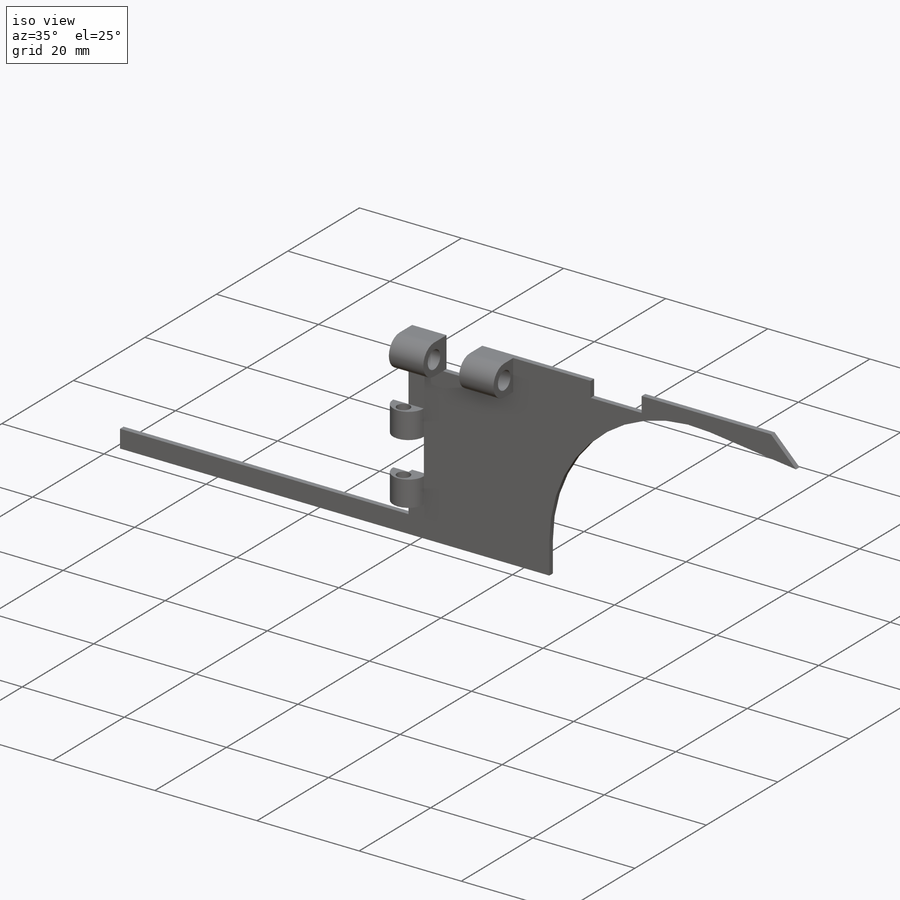
[diagram: iso view]
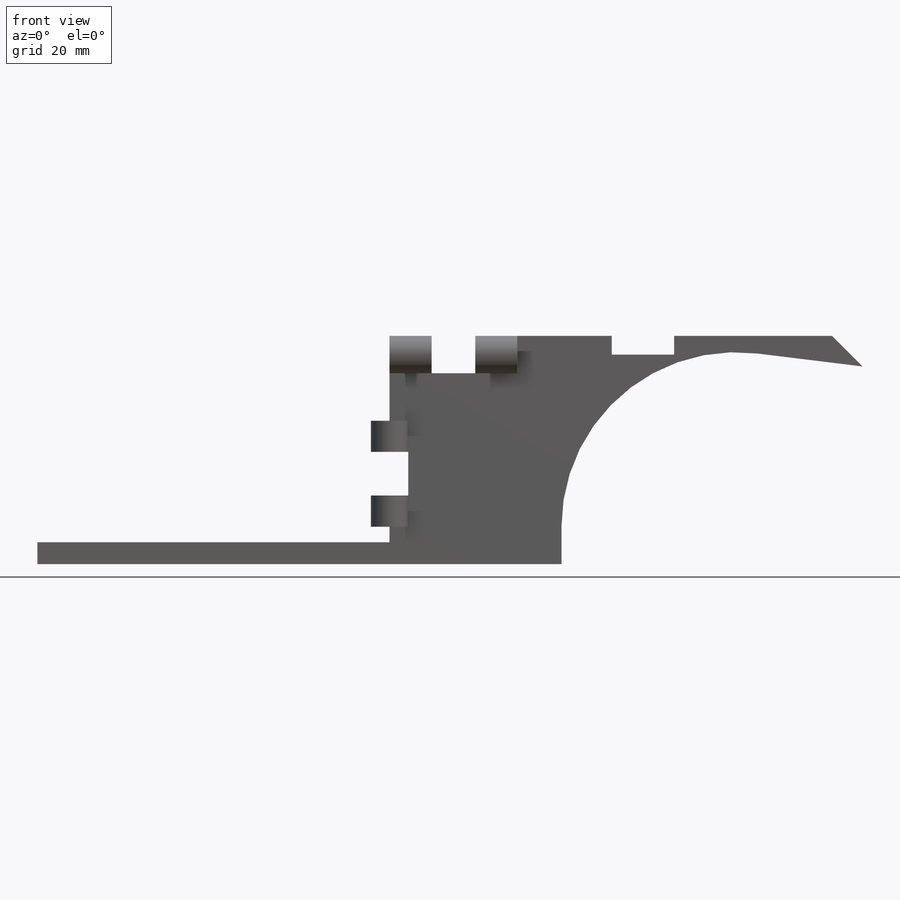
[diagram: front view]
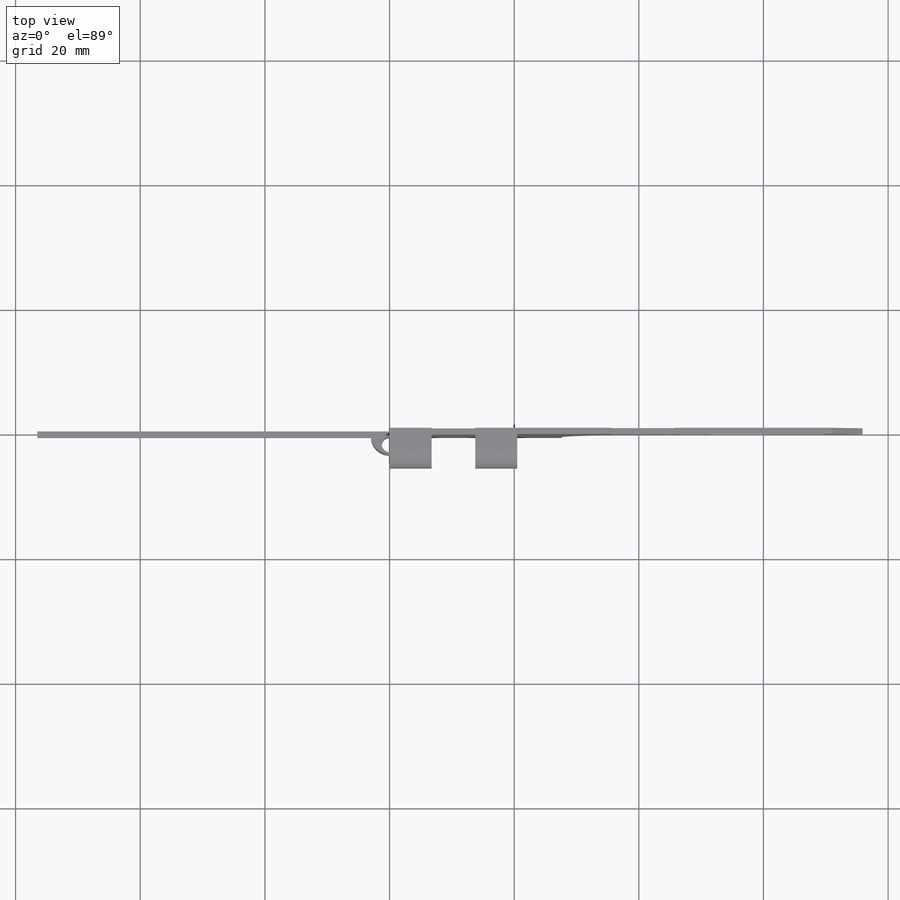
[diagram: top view]
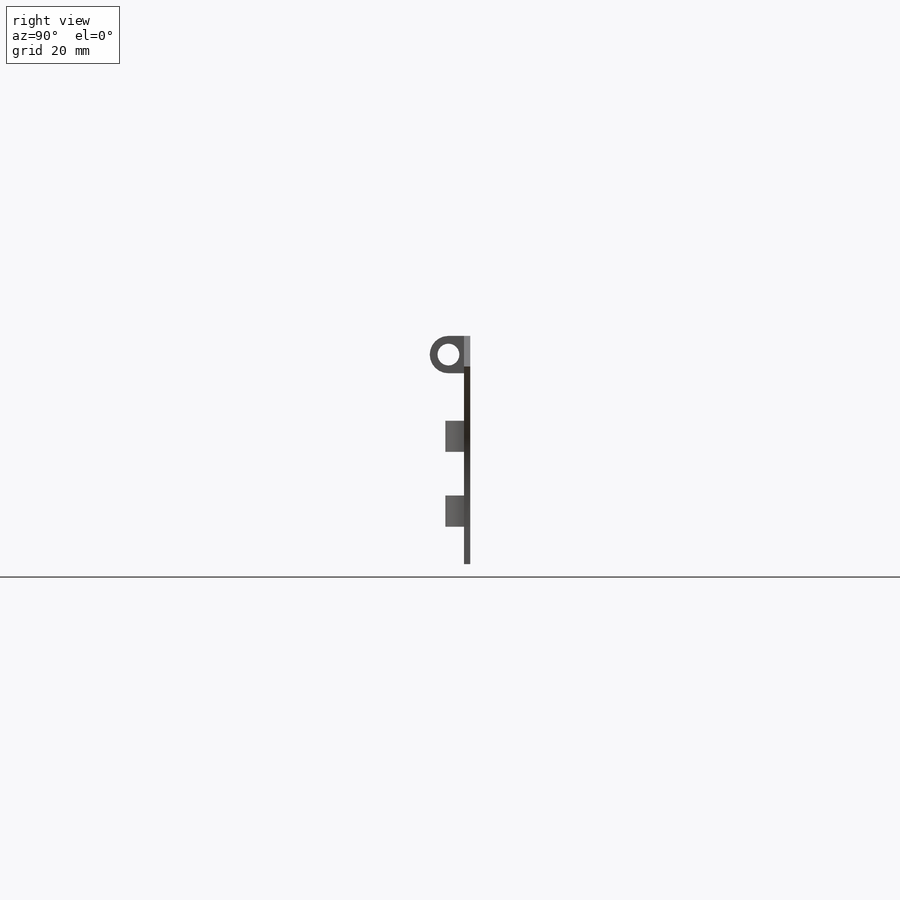
[diagram: right view]
SOLIDWORKS PART (.sldprt)
format: sldprt  version: not decoded by parser v0  size: 381,440 bytes
history: native  units: mm
features: sketch x8, cut_extrude x5, extrude x3, pattern_linear x2, material x1, plane x1, chamfer x1 (+13 scaffold rows collapsed)
feature tree (34):
  scaffold x13  (default folders/planes/origin — collapsed)
  material  "Material <not specified>"
  sketch  "Sketch1"  dims[c1.D7=~19.651656mm c1.D5=18.0mm c1.D6=28.0mm c1.D1=36.62mm c1.D2=132.5mm c1.D3=76.0mm c1.D4=3.5mm c2.D5=8.0mm c2.D6=31.0mm c2.D7=11.0mm c3.D6=25.0mm c3.D7=20.0mm c3.D8=20.0mm c3.D5=6.0mm c4.D7=11.0mm c4.D8=17.0mm c5.D7=22.0mm c6.D7=7.0deg]
  extrude  "Boss-Extrude1"  Depth=1mm
  plane  "Plane1"  Offset=5mm
  sketch  "Sketch5"  dims[D1=3.0mm]
  extrude  "Boss-Extrude3"  Depth=5mm
  pattern_linear  "LPattern1"  Count1=2 Count2=1 Spacing1=12mm Spacing2=10mm
  sketch  "Sketch6"  dims[D1=2.5mm D2=1.4mm]
  cut_extrude  "Cut-Extrude3"  [1 undecoded]
  sketch  "Sketch9"  dims[D1=3.0mm D2=3.5mm]
  extrude  "Boss-Extrude5"  Depth=6.75mm
  pattern_linear  "LPattern2"  Count1=2 Count2=1 Spacing1=13.75mm Spacing2=10mm
  sketch  "Sketch10"  dims[D1=3.5mm D2=1.4mm]
  cut_extrude  "Cut-Extrude4"  [1 undecoded]
  sketch  "Sketch11"
  cut_extrude  "Cut-Extrude5"  [1 undecoded]
  chamfer  "Chamfer1"  Distance=5mm Angle=45deg
  sketch  "Sketch12"  dims[D1=3.0mm D2=10.0mm D3=35.25mm]
  cut_extrude  "Cut-Extrude6"  [1 undecoded]
  sketch  "Sketch13"
  cut_extrude  "Cut-Extrude7"  [1 undecoded]
decode coverage: 12 of 19 modeling features carry decoded parameters
note: ~ marks probable driven/reference dimensions
note: 5 parameter values undecoded
summary: no parameter record found for 5 features
note: suppression state not decoded; provenance and decode notes live in map.json
